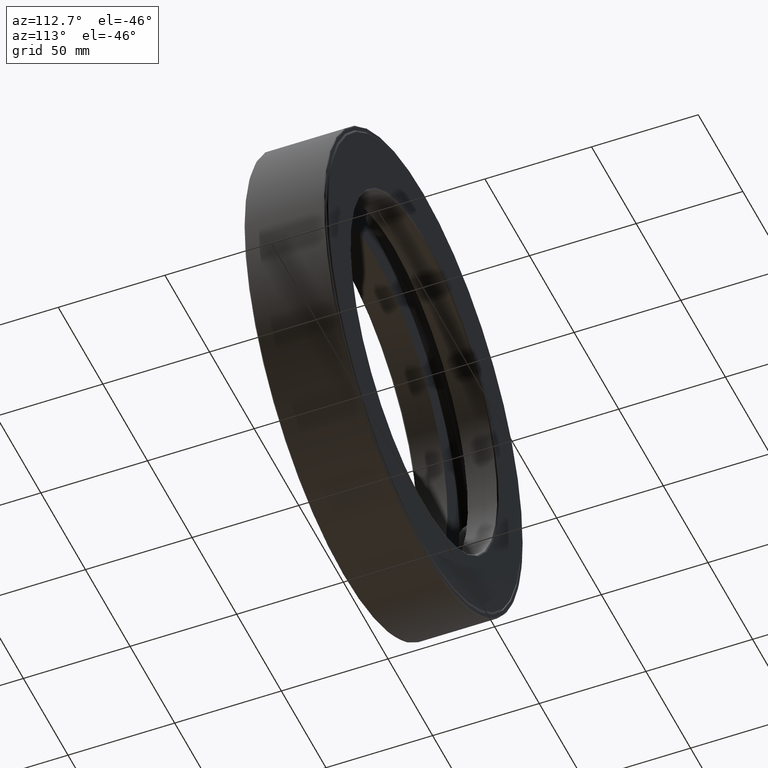
[diagram: clean part render]
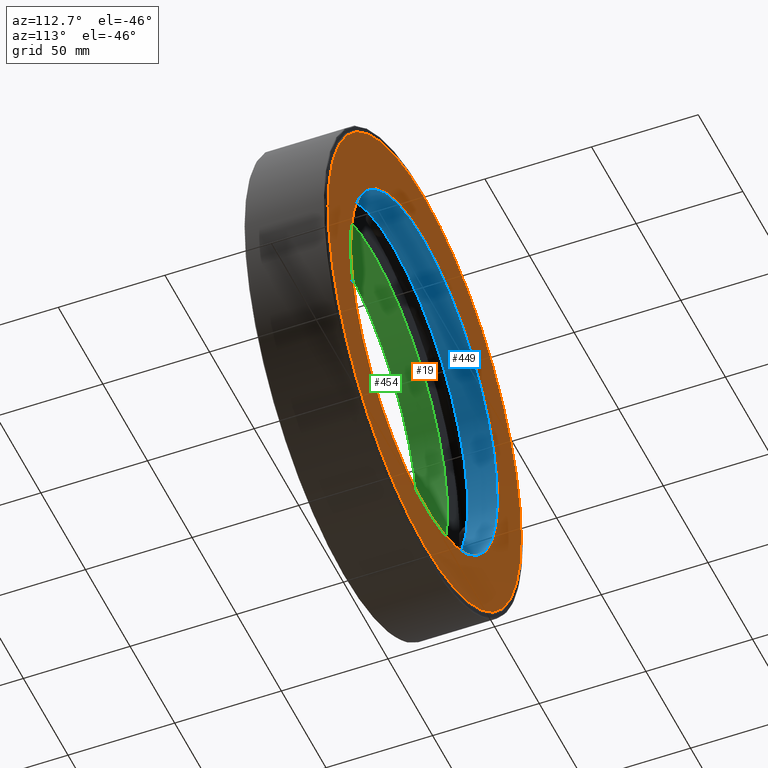
[diagram: same view with three faces highlighted in distinct colors, each labeled with its STEP entity id]
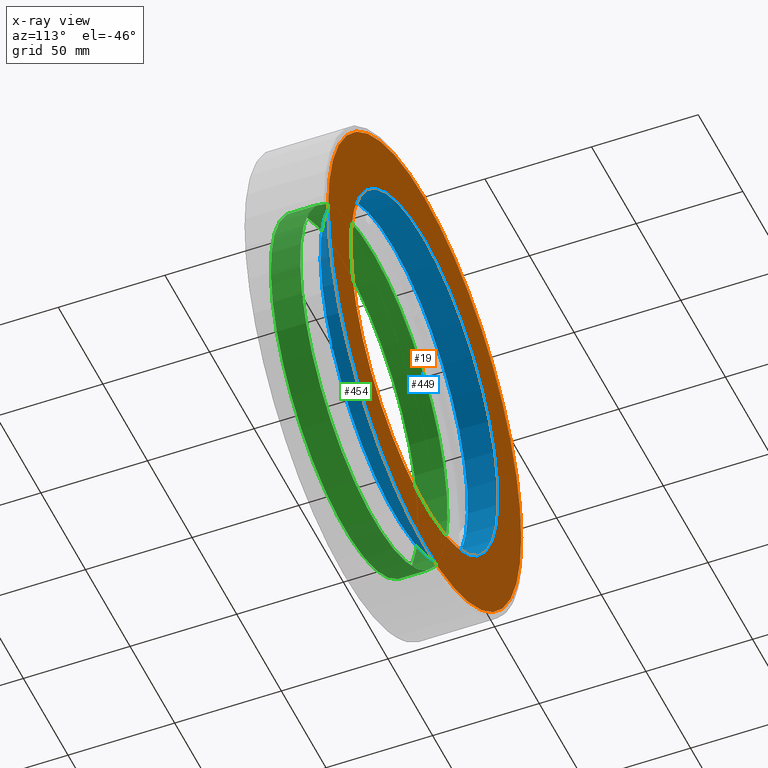
[diagram: x-ray of the same camera — body ghosted, the three highlighted faces saturated]
A machine part, auxiliary view with three faces highlighted in distinct colors.
The next image is the same camera in x-ray (body ghosted, the three faces saturated) — at least one of them is partly hidden behind the body in this view.
Their STEP definitions:

[orange] entity #19 — the highlighted planar face has unit normal (-0, 1, 0).
#19 = ADVANCED_FACE ( 'NONE', ( #287, #552 ), #27, .T. ) ;
#27 = PLANE ( 'NONE',  #471 ) ;
#36 = DIRECTION ( 'NONE',  ( 0.0000000000000000000, 0.0000000000000000000, 1.000000000000000000 ) ) ;
#38 = AXIS2_PLACEMENT_3D ( 'NONE', #414, #186, #36 ) ;
#47 = ORIENTED_EDGE ( 'NONE', *, *, #67, .F. ) ;
#67 = EDGE_CURVE ( 'NONE', #520, #520, #300, .T. ) ;
#84 = DIRECTION ( 'NONE',  ( -0.0000000000000000000, 1.000000000000000000, 0.0000000000000000000 ) ) ;
#102 = ORIENTED_EDGE ( 'NONE', *, *, #138, .T. ) ;
#128 = CARTESIAN_POINT ( 'NONE',  ( 0.0000000000000000000, 1.500000000000000200, 0.0000000000000000000 ) ) ;
#138 = EDGE_CURVE ( 'NONE', #267, #267, #248, .T. ) ;
#186 = DIRECTION ( 'NONE',  ( -0.0000000000000000000, 1.000000000000000000, -0.0000000000000000000 ) ) ;
#223 = CARTESIAN_POINT ( 'NONE',  ( -4.139163626764039800E-016, 1.499999999999999800, 0.0000000000000000000 ) ) ;
#229 = DIRECTION ( 'NONE',  ( 0.0000000000000000000, 0.0000000000000000000, 1.000000000000000000 ) ) ;
#248 = CIRCLE ( 'NONE', #38, 4.259999999999999800 ) ;
#261 = CARTESIAN_POINT ( 'NONE',  ( 0.0000000000000000000, 1.500000000000000200, 3.270000000000000000 ) ) ;
#267 = VERTEX_POINT ( 'NONE', #360 ) ;
#287 = FACE_OUTER_BOUND ( 'NONE', #420, .T. ) ;
#300 = CIRCLE ( 'NONE', #568, 3.270000000000000000 ) ;
#306 = DIRECTION ( 'NONE',  ( -0.0000000000000000000, 1.000000000000000000, -0.0000000000000000000 ) ) ;
#312 = DIRECTION ( 'NONE',  ( 0.0000000000000000000, 0.0000000000000000000, 1.000000000000000000 ) ) ;
#360 = CARTESIAN_POINT ( 'NONE',  ( 0.0000000000000000000, 1.499999999999999800, 4.259999999999999800 ) ) ;
#414 = CARTESIAN_POINT ( 'NONE',  ( 0.0000000000000000000, 1.499999999999999800, 0.0000000000000000000 ) ) ;
#420 = EDGE_LOOP ( 'NONE', ( #102 ) ) ;
#471 = AXIS2_PLACEMENT_3D ( 'NONE', #223, #84, #229 ) ;
#520 = VERTEX_POINT ( 'NONE', #261 ) ;
#527 = EDGE_LOOP ( 'NONE', ( #47 ) ) ;
#552 = FACE_BOUND ( 'NONE', #527, .T. ) ;
#568 = AXIS2_PLACEMENT_3D ( 'NONE', #128, #306, #312 ) ;

[blue] entity #449 — the highlighted cylindrical surface (bore or boss wall) has radius 82.55 mm, axis along (-0, 1, -0).
#26 = CARTESIAN_POINT ( 'NONE',  ( 0.0000000000000000000, 0.9374999999999996700, 3.250000000000000000 ) ) ;
#86 = EDGE_LOOP ( 'NONE', ( #374 ) ) ;
#114 = DIRECTION ( 'NONE',  ( -0.0000000000000000000, 1.000000000000000000, -0.0000000000000000000 ) ) ;
#134 = EDGE_CURVE ( 'NONE', #281, #281, #183, .T. ) ;
#142 = EDGE_LOOP ( 'NONE', ( #384 ) ) ;
#160 = AXIS2_PLACEMENT_3D ( 'NONE', #368, #459, #361 ) ;
#167 = FACE_OUTER_BOUND ( 'NONE', #86, .T. ) ;
#183 = CIRCLE ( 'NONE', #160, 3.250000000000000000 ) ;
#201 = AXIS2_PLACEMENT_3D ( 'NONE', #206, #436, #523 ) ;
#206 = CARTESIAN_POINT ( 'NONE',  ( 0.0000000000000000000, 0.0000000000000000000, 0.0000000000000000000 ) ) ;
#256 = AXIS2_PLACEMENT_3D ( 'NONE', #388, #114, #482 ) ;
#281 = VERTEX_POINT ( 'NONE', #588 ) ;
#337 = CIRCLE ( 'NONE', #256, 3.250000000000000000 ) ;
#361 = DIRECTION ( 'NONE',  ( 0.0000000000000000000, 0.0000000000000000000, 1.000000000000000000 ) ) ;
#368 = CARTESIAN_POINT ( 'NONE',  ( 0.0000000000000000000, 1.480000000000000000, 0.0000000000000000000 ) ) ;
#374 = ORIENTED_EDGE ( 'NONE', *, *, #134, .T. ) ;
#384 = ORIENTED_EDGE ( 'NONE', *, *, #415, .F. ) ;
#388 = CARTESIAN_POINT ( 'NONE',  ( 0.0000000000000000000, 0.9374999999999996700, 0.0000000000000000000 ) ) ;
#415 = EDGE_CURVE ( 'NONE', #477, #477, #337, .T. ) ;
#436 = DIRECTION ( 'NONE',  ( -0.0000000000000000000, 1.000000000000000000, -0.0000000000000000000 ) ) ;
#449 = ADVANCED_FACE ( 'NONE', ( #167, #468 ), #510, .F. ) ;
#459 = DIRECTION ( 'NONE',  ( -0.0000000000000000000, 1.000000000000000000, -0.0000000000000000000 ) ) ;
#468 = FACE_OUTER_BOUND ( 'NONE', #142, .T. ) ;
#477 = VERTEX_POINT ( 'NONE', #26 ) ;
#482 = DIRECTION ( 'NONE',  ( 0.0000000000000000000, 0.0000000000000000000, 1.000000000000000000 ) ) ;
#510 = CYLINDRICAL_SURFACE ( 'NONE', #201, 3.250000000000000000 ) ;
#523 = DIRECTION ( 'NONE',  ( 0.0000000000000000000, 0.0000000000000000000, 1.000000000000000000 ) ) ;
#588 = CARTESIAN_POINT ( 'NONE',  ( 0.0000000000000000000, 1.480000000000000000, 3.250000000000000000 ) ) ;

[green] entity #454 — the highlighted cylindrical surface (bore or boss wall) has radius 82.55 mm, axis along (-0, 1, -0).
#54 = CYLINDRICAL_SURFACE ( 'NONE', #294, 3.250000000000000000 ) ;
#79 = FACE_OUTER_BOUND ( 'NONE', #342, .T. ) ;
#88 = DIRECTION ( 'NONE',  ( 0.0000000000000000000, 0.0000000000000000000, 1.000000000000000000 ) ) ;
#90 = CARTESIAN_POINT ( 'NONE',  ( 0.0000000000000000000, 0.01999999999999978500, 0.0000000000000000000 ) ) ;
#111 = FACE_OUTER_BOUND ( 'NONE', #502, .T. ) ;
#150 = VERTEX_POINT ( 'NONE', #543 ) ;
#164 = DIRECTION ( 'NONE',  ( 0.0000000000000000000, 0.0000000000000000000, 1.000000000000000000 ) ) ;
#165 = EDGE_CURVE ( 'NONE', #150, #150, #308, .T. ) ;
#215 = EDGE_CURVE ( 'NONE', #480, #480, #260, .T. ) ;
#219 = AXIS2_PLACEMENT_3D ( 'NONE', #90, #461, #322 ) ;
#231 = DIRECTION ( 'NONE',  ( -0.0000000000000000000, 1.000000000000000000, -0.0000000000000000000 ) ) ;
#260 = CIRCLE ( 'NONE', #406, 3.250000000000000000 ) ;
#285 = ORIENTED_EDGE ( 'NONE', *, *, #215, .T. ) ;
#294 = AXIS2_PLACEMENT_3D ( 'NONE', #575, #569, #164 ) ;
#308 = CIRCLE ( 'NONE', #219, 3.250000000000000000 ) ;
#322 = DIRECTION ( 'NONE',  ( 0.0000000000000000000, 0.0000000000000000000, 1.000000000000000000 ) ) ;
#342 = EDGE_LOOP ( 'NONE', ( #285 ) ) ;
#406 = AXIS2_PLACEMENT_3D ( 'NONE', #496, #231, #88 ) ;
#407 = CARTESIAN_POINT ( 'NONE',  ( 0.0000000000000000000, 0.5625000000000002200, 3.250000000000000000 ) ) ;
#427 = ORIENTED_EDGE ( 'NONE', *, *, #165, .F. ) ;
#454 = ADVANCED_FACE ( 'NONE', ( #111, #79 ), #54, .F. ) ;
#461 = DIRECTION ( 'NONE',  ( -0.0000000000000000000, 1.000000000000000000, -0.0000000000000000000 ) ) ;
#480 = VERTEX_POINT ( 'NONE', #407 ) ;
#496 = CARTESIAN_POINT ( 'NONE',  ( 0.0000000000000000000, 0.5625000000000002200, 0.0000000000000000000 ) ) ;
#502 = EDGE_LOOP ( 'NONE', ( #427 ) ) ;
#543 = CARTESIAN_POINT ( 'NONE',  ( 0.0000000000000000000, 0.01999999999999978500, 3.250000000000000000 ) ) ;
#569 = DIRECTION ( 'NONE',  ( -0.0000000000000000000, 1.000000000000000000, -0.0000000000000000000 ) ) ;
#575 = CARTESIAN_POINT ( 'NONE',  ( 0.0000000000000000000, 0.0000000000000000000, 0.0000000000000000000 ) ) ;